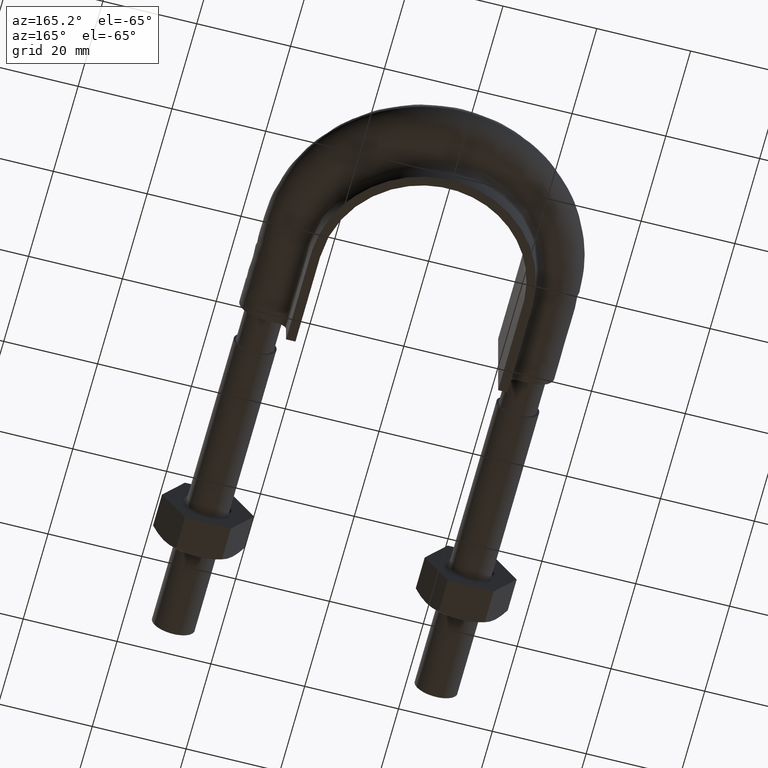
[diagram: clean part render]
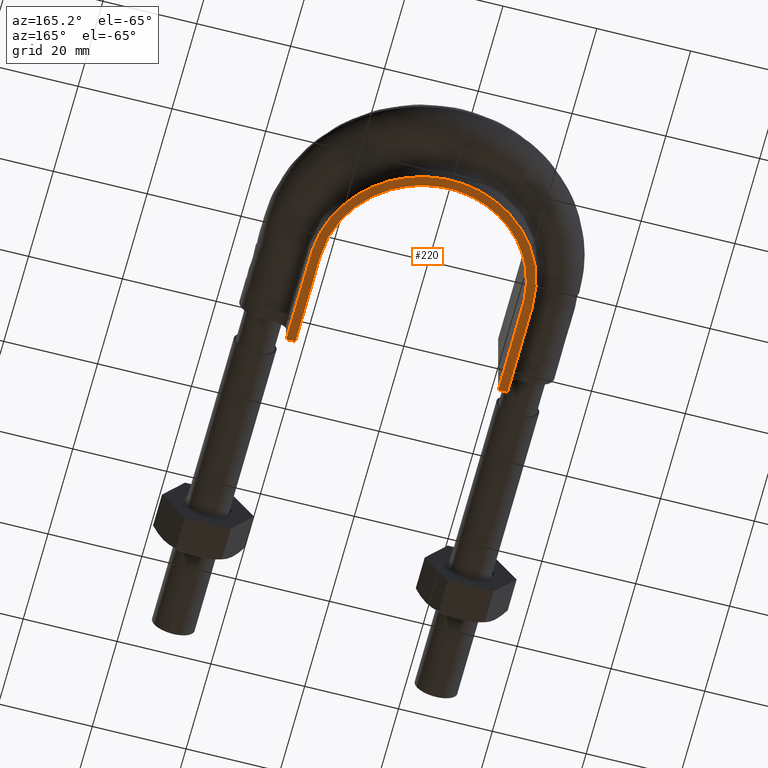
[diagram: same view with one face highlighted and labeled with its STEP entity id]
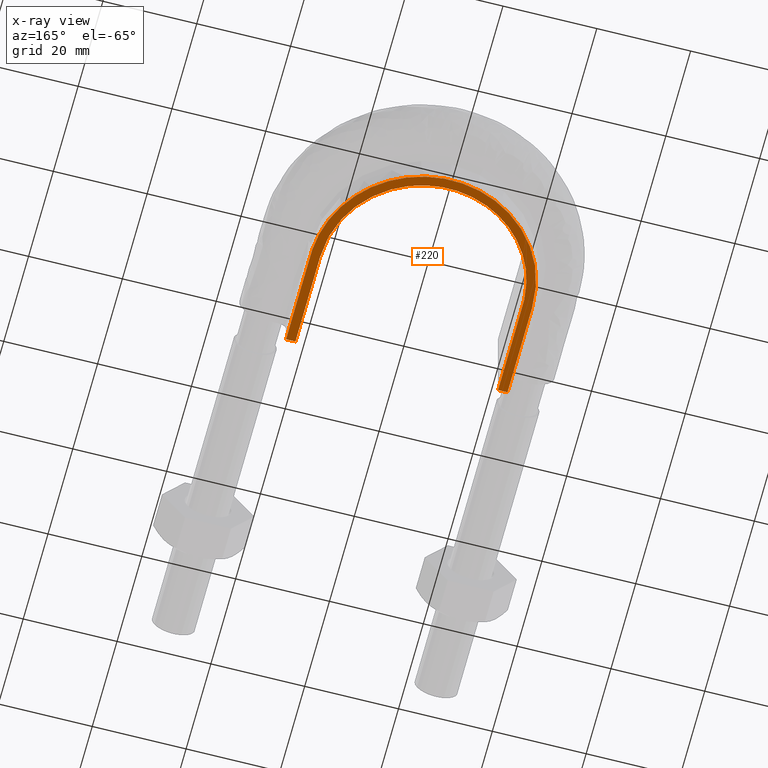
[diagram: x-ray of the same camera — body ghosted, the highlighted face saturated]
A machine part, auxiliary view. The second image highlights one B-rep face of the part: STEP entity #220.
The next image is the same camera in x-ray: the body ghosted, the highlighted face saturated — about 0% of this face is hidden behind the body in this view.
In plain terms, the highlighted planar face has unit normal (0, 0, 1).
Its self-contained STEP definition (entity closure, byte-faithful):
#220 = ADVANCED_FACE( '', ( #299 ), #300, .F. );
#299 = FACE_OUTER_BOUND( '', #471, .T. );
#300 = PLANE( '', #472 );
#471 = EDGE_LOOP( '', ( #1473, #1474, #1475, #1476 ) );
#472 = AXIS2_PLACEMENT_3D( '', #1477, #1478, #1479 );
#1473 = ORIENTED_EDGE( '', *, *, #2008, .F. );
#1474 = ORIENTED_EDGE( '', *, *, #2006, .F. );
#1475 = ORIENTED_EDGE( '', *, *, #2009, .T. );
#1476 = ORIENTED_EDGE( '', *, *, #2010, .F. );
#1477 = CARTESIAN_POINT( '', ( 40.0000000000000, 134.300000000000, -12.5000000000000 ) );
#1478 = DIRECTION( '', ( 0.000000000000000, 0.000000000000000, 1.00000000000000 ) );
#1479 = DIRECTION( '', ( 1.00000000000000, 0.000000000000000, 0.000000000000000 ) );
#2006 = EDGE_CURVE( '', #2160, #2156, #2162, .T. );
#2008 = EDGE_CURVE( '', #2156, #2165, #2166, .F. );
#2009 = EDGE_CURVE( '', #2160, #2167, #2168, .T. );
#2010 = EDGE_CURVE( '', #2165, #2167, #2169, .T. );
#2156 = VERTEX_POINT( '', #2406 );
#2160 = VERTEX_POINT( '', #2412 );
#2162 = LINE( '', #2444, #2445 );
#2165 = VERTEX_POINT( '', #2457 );
#2166 = B_SPLINE_CURVE_WITH_KNOTS( '', 3, ( #2458, #2459, #2460, #2461, #2462, #2463, #2464, #2465, #2466, #2467, #2468, #2469, #2470, #2471, #2472, #2473, #2474 ), .UNSPECIFIED., .F., .F., ( 4, 3, 1, 1, 1, 1, 1, 1, 1, 3, 4 ), ( -7.87012987012987, -7.00000000000000, -6.50000000000000, -6.00000000000000, -5.00000000000000, -4.00000000000000, -3.00000000000000, -2.00000000000000, -1.50000000000000, -1.00000000000000, -0.129870129870130 ), .UNSPECIFIED. );
#2167 = VERTEX_POINT( '', #2475 );
#2168 = B_SPLINE_CURVE_WITH_KNOTS( '', 3, ( #2476, #2477, #2478, #2479, #2480, #2481, #2482, #2483, #2484, #2485, #2486, #2487, #2488, #2489, #2490, #2491, #2492 ), .UNSPECIFIED., .F., .F., ( 4, 3, 1, 1, 1, 1, 1, 1, 1, 3, 4 ), ( 0.129870129870130, 1.00000000000000, 1.50000000000000, 2.00000000000000, 3.00000000000000, 4.00000000000000, 5.00000000000000, 6.00000000000000, 6.50000000000000, 7.00000000000000, 7.87012987012987 ), .UNSPECIFIED. );
#2169 = LINE( '', #2493, #2494 );
#2406 = CARTESIAN_POINT( '', ( -21.6000000000000, 74.3000000000000, -12.5000000000000 ) );
#2412 = CARTESIAN_POINT( '', ( -23.6000000000000, 74.3000000000000, -12.5000000000000 ) );
#2444 = CARTESIAN_POINT( '', ( -40.0000000000000, 74.3000000000000, -12.5000000000000 ) );
#2445 = VECTOR( '', #3056, 1000.00000000000 );
#2457 = CARTESIAN_POINT( '', ( 21.6000000000000, 74.3000000000000, -12.5000000000000 ) );
#2458 = CARTESIAN_POINT( '', ( 21.6000000000000, 74.3000000000000, -12.5000000000000 ) );
#2459 = CARTESIAN_POINT( '', ( 21.6000000000000, 81.0000000000000, -12.5000000000000 ) );
#2460 = CARTESIAN_POINT( '', ( 21.6000000000000, 87.7000000000000, -12.5000000000000 ) );
#2461 = CARTESIAN_POINT( '', ( 21.6000000000000, 94.4000000000000, -12.5000000000000 ) );
#2462 = CARTESIAN_POINT( '', ( 21.6000000000000, 96.2707818787651, -12.5000000000000 ) );
#2463 = CARTESIAN_POINT( '', ( 21.0928042095142, 100.057843449447, -12.5000000000000 ) );
#2464 = CARTESIAN_POINT( '', ( 18.2026423381404, 107.081006693111, -12.5000000000000 ) );
#2465 = CARTESIAN_POINT( '', ( 11.3044287353241, 113.981722514767, -12.5000000000000 ) );
#2466 = CARTESIAN_POINT( '', ( 2.12679073798565E-014, 117.009138742617, -12.5000000000000 ) );
#2467 = CARTESIAN_POINT( '', ( -11.3044287353241, 113.981722514767, -12.5000000000000 ) );
#2468 = CARTESIAN_POINT( '', ( -18.2026423381403, 107.081006693111, -12.5000000000000 ) );
#2469 = CARTESIAN_POINT( '', ( -21.0928042095142, 100.057843449447, -12.5000000000000 ) );
#2470 = CARTESIAN_POINT( '', ( -21.6000000000000, 96.2707818787651, -12.5000000000000 ) );
#2471 = CARTESIAN_POINT( '', ( -21.6000000000000, 94.4000000000000, -12.5000000000000 ) );
#2472 = CARTESIAN_POINT( '', ( -21.6000000000000, 87.7000000000000, -12.5000000000000 ) );
#2473 = CARTESIAN_POINT( '', ( -21.6000000000000, 81.0000000000000, -12.5000000000000 ) );
#2474 = CARTESIAN_POINT( '', ( -21.6000000000000, 74.3000000000000, -12.5000000000000 ) );
#2475 = CARTESIAN_POINT( '', ( 23.6000000000000, 74.3000000000000, -12.5000000000000 ) );
#2476 = CARTESIAN_POINT( '', ( -23.6000000000000, 74.3000000000000, -12.5000000000000 ) );
#2477 = CARTESIAN_POINT( '', ( -23.6000000000000, 81.0000000000000, -12.5000000000000 ) );
#2478 = CARTESIAN_POINT( '', ( -23.6000000000000, 87.7000000000000, -12.5000000000000 ) );
#2479 = CARTESIAN_POINT( '', ( -23.6000000000000, 94.4000000000000, -12.5000000000000 ) );
#2480 = CARTESIAN_POINT( '', ( -23.6000000000000, 96.4494146737192, -12.5000000000000 ) );
#2481 = CARTESIAN_POINT( '', ( -23.0467901016320, 100.579523767700, -12.5000000000000 ) );
#2482 = CARTESIAN_POINT( '', ( -19.8875260981763, 108.256444233582, -12.5000000000000 ) );
#2483 = CARTESIAN_POINT( '', ( -12.3513075479443, 115.794383059266, -12.5000000000000 ) );
#2484 = CARTESIAN_POINT( '', ( 2.23916612429857E-014, 119.102808470367, -12.5000000000000 ) );
#2485 = CARTESIAN_POINT( '', ( 12.3513075479443, 115.794383059266, -12.5000000000000 ) );
#2486 = CARTESIAN_POINT( '', ( 19.8875260981763, 108.256444233582, -12.5000000000000 ) );
#2487 = CARTESIAN_POINT( '', ( 23.0467901016320, 100.579523767700, -12.5000000000000 ) );
#2488 = CARTESIAN_POINT( '', ( 23.6000000000000, 96.4494146737192, -12.5000000000000 ) );
#2489 = CARTESIAN_POINT( '', ( 23.6000000000000, 94.4000000000000, -12.5000000000000 ) );
#2490 = CARTESIAN_POINT( '', ( 23.6000000000000, 87.7000000000000, -12.5000000000000 ) );
#2491 = CARTESIAN_POINT( '', ( 23.6000000000000, 81.0000000000000, -12.5000000000000 ) );
#2492 = CARTESIAN_POINT( '', ( 23.6000000000000, 74.3000000000000, -12.5000000000000 ) );
#2493 = CARTESIAN_POINT( '', ( -40.0000000000000, 74.3000000000000, -12.5000000000000 ) );
#2494 = VECTOR( '', #3057, 1000.00000000000 );
#3056 = DIRECTION( '', ( 1.00000000000000, -1.83649404852125E-048, 0.000000000000000 ) );
#3057 = DIRECTION( '', ( 1.00000000000000, -1.83649404852125E-048, 0.000000000000000 ) );